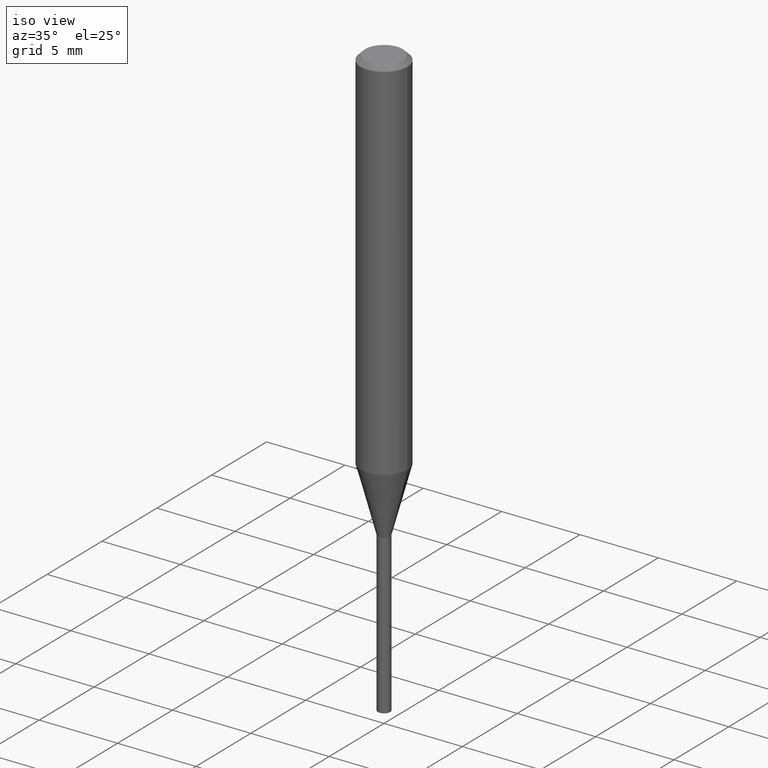
[diagram: clean part render]
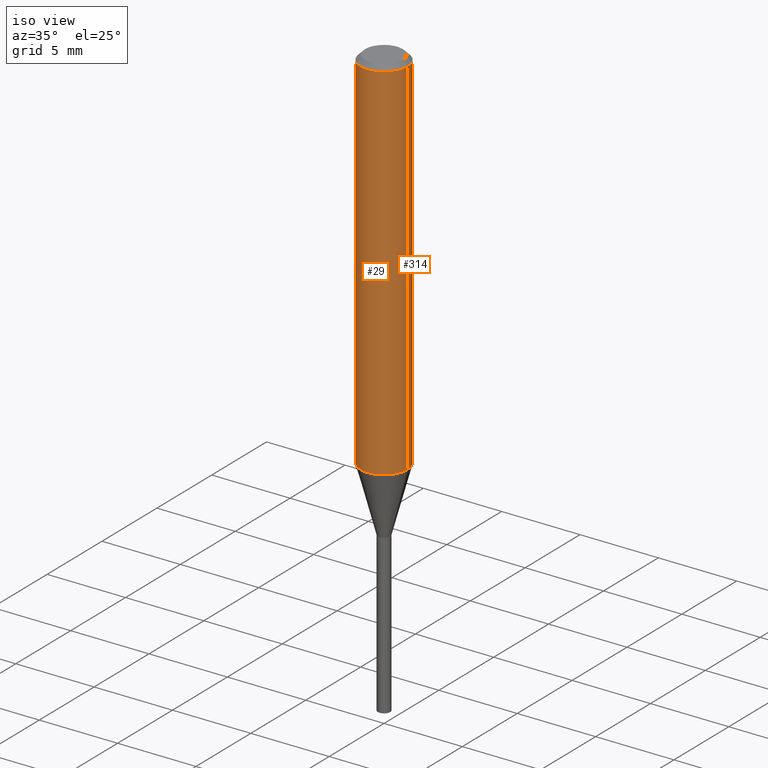
[diagram: same view with one multi-face feature highlighted, each face labeled with its STEP entity id]
A machine part, iso view. The highlighted faces form ONE feature: a constant-radius fillet chain: 2 tangent blend faces with common blend radius 1.4999 mm. The faces share edges in the B-rep.
Their STEP definitions:
[1] entity #29 (Cylinder):
#14 = DIRECTION ( 'NONE',  ( -2.445468806185136877E-29, 3.491481338843145188E-15, 1.000000000000000000 ) ) ;
#29 = ADVANCED_FACE ( 'NONE', ( #46 ), #155, .T. ) ;
#34 = VECTOR ( 'NONE', #14, 39.37007874015748143 ) ;
#46 = FACE_OUTER_BOUND ( 'NONE', #169, .T. ) ;
#59 = CARTESIAN_POINT ( 'NONE',  ( -0.05904999999999999832, -1.219010538799330000E-15, -0.01181000000000007044 ) ) ;
#87 = CARTESIAN_POINT ( 'NONE',  ( -0.05905000000000005383, 4.195754854663395423E-16, -2.904631170795524694E-30 ) ) ;
#96 = CARTESIAN_POINT ( 'NONE',  ( 0.05905000000000010935, -3.648281600036976967E-15, -0.9268093797092398223 ) ) ;
#97 = CIRCLE ( 'NONE', #348, 0.05904999999999999832 ) ;
#119 = CIRCLE ( 'NONE', #144, 0.05905000000000010935 ) ;
#128 = EDGE_CURVE ( 'NONE', #485, #332, #244, .T. ) ;
#133 = CARTESIAN_POINT ( 'NONE',  ( 0.05904999999999999832, -4.535783407291118600E-16, -0.01181000000000007044 ) ) ;
#135 = CARTESIAN_POINT ( 'NONE',  ( 0.05905000000000005383, -4.123439461173744271E-16, 2.879382386107502672E-30 ) ) ;
#144 = AXIS2_PLACEMENT_3D ( 'NONE', #351, #203, #279 ) ;
#148 = ORIENTED_EDGE ( 'NONE', *, *, #449, .F. ) ;
#155 = CYLINDRICAL_SURFACE ( 'NONE', #170, 0.05905000000000005383 ) ;
#167 = LINE ( 'NONE', #87, #375 ) ;
#168 = DIRECTION ( 'NONE',  ( 1.000000000000000000, -6.982962677686266711E-15, 0.000000000000000000 ) ) ;
#169 = EDGE_LOOP ( 'NONE', ( #148, #188, #221, #339 ) ) ;
#170 = AXIS2_PLACEMENT_3D ( 'NONE', #197, #307, #453 ) ;
#188 = ORIENTED_EDGE ( 'NONE', *, *, #427, .T. ) ;
#197 = CARTESIAN_POINT ( 'NONE',  ( 0.000000000000000000, 0.000000000000000000, 0.000000000000000000 ) ) ;
#203 = DIRECTION ( 'NONE',  ( -2.445468806185136597E-29, 3.491481338843145583E-15, 1.000000000000000000 ) ) ;
#204 = DIRECTION ( 'NONE',  ( -2.445468806185136597E-29, 3.491481338843145583E-15, 1.000000000000000000 ) ) ;
#214 = EDGE_CURVE ( 'NONE', #467, #332, #97, .T. ) ;
#221 = ORIENTED_EDGE ( 'NONE', *, *, #128, .T. ) ;
#244 = LINE ( 'NONE', #135, #34 ) ;
#248 = VERTEX_POINT ( 'NONE', #473 ) ;
#279 = DIRECTION ( 'NONE',  ( 1.000000000000000000, -6.982962677686267499E-15, 0.000000000000000000 ) ) ;
#307 = DIRECTION ( 'NONE',  ( -2.445468806185136597E-29, 3.491481338843145583E-15, 1.000000000000000000 ) ) ;
#326 = CARTESIAN_POINT ( 'NONE',  ( 2.888098660104663766E-31, -4.123439461173779647E-17, -0.01181000000000007044 ) ) ;
#332 = VERTEX_POINT ( 'NONE', #133 ) ;
#339 = ORIENTED_EDGE ( 'NONE', *, *, #214, .F. ) ;
#348 = AXIS2_PLACEMENT_3D ( 'NONE', #326, #204, #168 ) ;
#351 = CARTESIAN_POINT ( 'NONE',  ( 2.266483427358741617E-29, -3.235937653919602046E-15, -0.9268093797092398223 ) ) ;
#375 = VECTOR ( 'NONE', #393, 39.37007874015748143 ) ;
#393 = DIRECTION ( 'NONE',  ( -2.445468806185136877E-29, 3.491481338843145188E-15, 1.000000000000000000 ) ) ;
#427 = EDGE_CURVE ( 'NONE', #248, #485, #119, .T. ) ;
#449 = EDGE_CURVE ( 'NONE', #248, #467, #167, .T. ) ;
#453 = DIRECTION ( 'NONE',  ( 1.000000000000000000, -6.982962677686266711E-15, 4.876176775795935793E-29 ) ) ;
#467 = VERTEX_POINT ( 'NONE', #59 ) ;
#473 = CARTESIAN_POINT ( 'NONE',  ( -0.05905000000000010935, -2.816362168453261765E-15, -0.9268093797092398223 ) ) ;
#485 = VERTEX_POINT ( 'NONE', #96 ) ;
[2] entity #314 (Cylinder):
#14 = DIRECTION ( 'NONE',  ( -2.445468806185136877E-29, 3.491481338843145188E-15, 1.000000000000000000 ) ) ;
#22 = DIRECTION ( 'NONE',  ( 1.000000000000000000, -6.982962677686266711E-15, 4.876176775795935793E-29 ) ) ;
#32 = EDGE_CURVE ( 'NONE', #332, #467, #65, .T. ) ;
#34 = VECTOR ( 'NONE', #14, 39.37007874015748143 ) ;
#41 = CIRCLE ( 'NONE', #208, 0.05905000000000010935 ) ;
#58 = DIRECTION ( 'NONE',  ( -2.445468806185136597E-29, 3.491481338843145583E-15, 1.000000000000000000 ) ) ;
#59 = CARTESIAN_POINT ( 'NONE',  ( -0.05904999999999999832, -1.219010538799330000E-15, -0.01181000000000007044 ) ) ;
#65 = CIRCLE ( 'NONE', #486, 0.05904999999999999832 ) ;
#81 = ORIENTED_EDGE ( 'NONE', *, *, #449, .T. ) ;
#86 = AXIS2_PLACEMENT_3D ( 'NONE', #240, #58, #22 ) ;
#87 = CARTESIAN_POINT ( 'NONE',  ( -0.05905000000000005383, 4.195754854663395423E-16, -2.904631170795524694E-30 ) ) ;
#91 = CYLINDRICAL_SURFACE ( 'NONE', #86, 0.05905000000000005383 ) ;
#96 = CARTESIAN_POINT ( 'NONE',  ( 0.05905000000000010935, -3.648281600036976967E-15, -0.9268093797092398223 ) ) ;
#105 = ORIENTED_EDGE ( 'NONE', *, *, #378, .T. ) ;
#120 = CARTESIAN_POINT ( 'NONE',  ( 2.888098660104663766E-31, -4.123439461173779647E-17, -0.01181000000000007044 ) ) ;
#124 = FACE_OUTER_BOUND ( 'NONE', #226, .T. ) ;
#128 = EDGE_CURVE ( 'NONE', #485, #332, #244, .T. ) ;
#133 = CARTESIAN_POINT ( 'NONE',  ( 0.05904999999999999832, -4.535783407291118600E-16, -0.01181000000000007044 ) ) ;
#135 = CARTESIAN_POINT ( 'NONE',  ( 0.05905000000000005383, -4.123439461173744271E-16, 2.879382386107502672E-30 ) ) ;
#157 = DIRECTION ( 'NONE',  ( -2.445468806185136597E-29, 3.491481338843145583E-15, 1.000000000000000000 ) ) ;
#165 = ORIENTED_EDGE ( 'NONE', *, *, #32, .F. ) ;
#167 = LINE ( 'NONE', #87, #375 ) ;
#208 = AXIS2_PLACEMENT_3D ( 'NONE', #295, #415, #254 ) ;
#210 = ORIENTED_EDGE ( 'NONE', *, *, #128, .F. ) ;
#226 = EDGE_LOOP ( 'NONE', ( #105, #81, #165, #210 ) ) ;
#229 = DIRECTION ( 'NONE',  ( 1.000000000000000000, -6.982962677686266711E-15, 0.000000000000000000 ) ) ;
#240 = CARTESIAN_POINT ( 'NONE',  ( 0.000000000000000000, 0.000000000000000000, 0.000000000000000000 ) ) ;
#244 = LINE ( 'NONE', #135, #34 ) ;
#248 = VERTEX_POINT ( 'NONE', #473 ) ;
#254 = DIRECTION ( 'NONE',  ( 1.000000000000000000, -6.982962677686267499E-15, 0.000000000000000000 ) ) ;
#295 = CARTESIAN_POINT ( 'NONE',  ( 2.266483427358741617E-29, -3.235937653919602046E-15, -0.9268093797092398223 ) ) ;
#314 = ADVANCED_FACE ( 'NONE', ( #124 ), #91, .T. ) ;
#332 = VERTEX_POINT ( 'NONE', #133 ) ;
#375 = VECTOR ( 'NONE', #393, 39.37007874015748143 ) ;
#378 = EDGE_CURVE ( 'NONE', #485, #248, #41, .T. ) ;
#393 = DIRECTION ( 'NONE',  ( -2.445468806185136877E-29, 3.491481338843145188E-15, 1.000000000000000000 ) ) ;
#415 = DIRECTION ( 'NONE',  ( -2.445468806185136597E-29, 3.491481338843145583E-15, 1.000000000000000000 ) ) ;
#449 = EDGE_CURVE ( 'NONE', #248, #467, #167, .T. ) ;
#467 = VERTEX_POINT ( 'NONE', #59 ) ;
#473 = CARTESIAN_POINT ( 'NONE',  ( -0.05905000000000010935, -2.816362168453261765E-15, -0.9268093797092398223 ) ) ;
#485 = VERTEX_POINT ( 'NONE', #96 ) ;
#486 = AXIS2_PLACEMENT_3D ( 'NONE', #120, #157, #229 ) ;